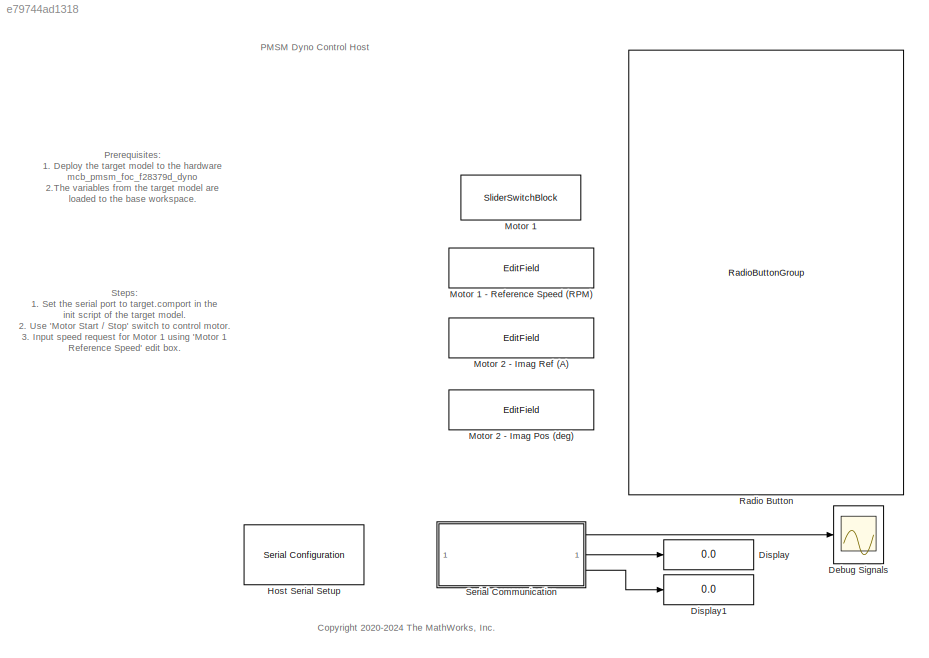
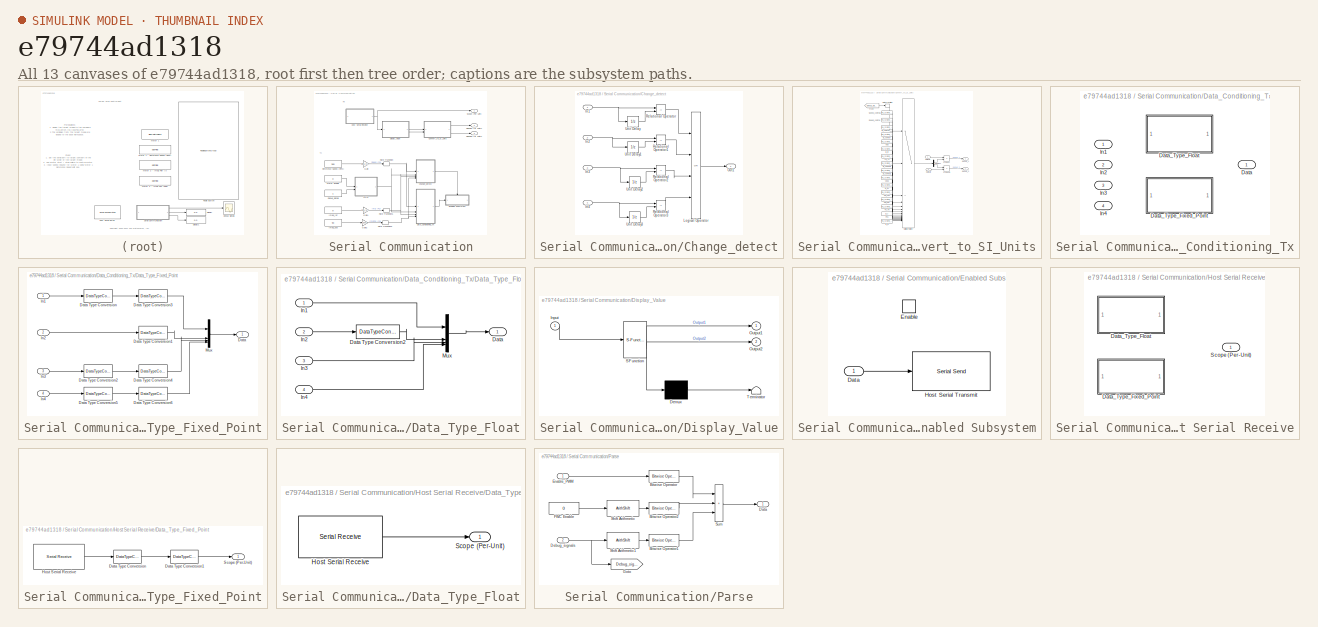
[diagram: thumbnail index - all 13 canvases of the model, root first then tree order]
MODEL slx_e79744ad1318
KIND model
CONFIG AbsTol = auto
CONFIG EnableMultiTasking = on
CONFIG FixedStep = auto
CONFIG MaxStep = auto
CONFIG MinStep = auto
CONFIG RelTol = 1e-3
CONFIG SampleTimeConstraint = Unconstrained
CONFIG SolverName = FixedStepDiscrete
CONFIG StartTime = 0.0
CONFIG StopTime = inf
BLOCK [Scope] Debug Signals
  Floating = off
  NumInputPorts = 1
  ScopeSpecificationString = Simulink.scopes.TimeScopeBlockCfg('CurrentConfiguration', extmgr.ConfigurationSet(extmgr.Configuration('Core','General UI',true),extmgr.Configuration('Core','Source UI',true),extmgr.Configuration('Sources','WiredSimulink',true,'DataLoggingVariableName','Results_HW','DataLoggingSaveFormat','StructureWithTime','DataLogging',true),extmgr.Configuration('Visuals','Time Domain',true,'InputProcessing','F...<+1792ch>
BLOCK [Display] Display
  Decimation = 1
BLOCK [Display] Display1
  Decimation = 1
BLOCK [Reference] Host Serial Setup  REF=instrumentseriallib/Serial Configuration
  LibrarySourceBlock = mcblib/Protection and Diagnostics/Host Serial Setup
  Priority = -99
  SourceBlock = instrumentseriallib/Serial Configuration
  SourceType = system.SerialConfiguration
BLOCK [SliderSwitchBlock] Motor 1
  LabelPosition = Hide
BLOCK [EditField] Motor 1 - Reference Speed (RPM)
  Alignment = Center
  LabelPosition = Hide
  ShowInitialText = on
BLOCK [EditField] Motor 2 - Imag Pos (deg)
  Alignment = Center
  LabelPosition = Hide
  ShowInitialText = on
BLOCK [EditField] Motor 2 - Imag Ref (A)
  Alignment = Center
  LabelPosition = Hide
  ShowInitialText = on
BLOCK [RadioButtonGroup] Radio Button
  ButtonGroupName = Debug signals
  LabelPosition = Hide
  SelectedLabel = Mtr1: Speed ref & Speed feedback
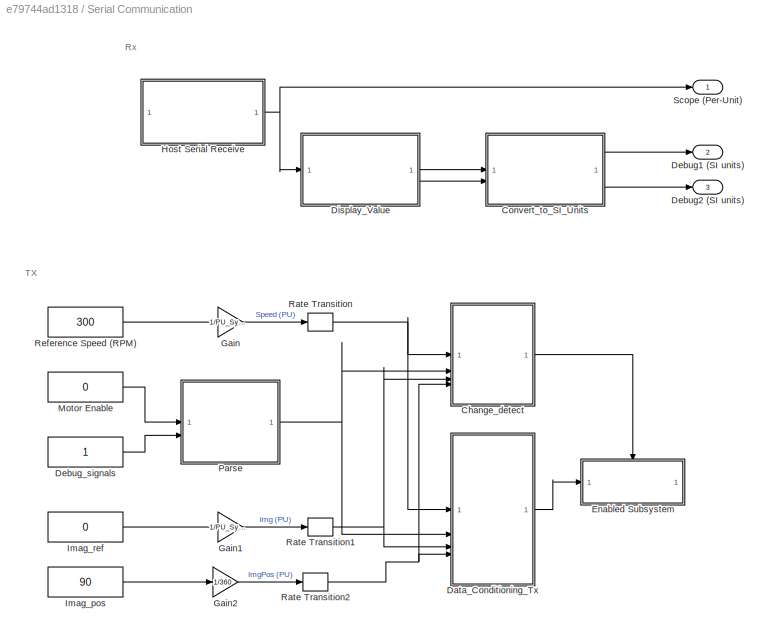
BLOCK [SubSystem] Serial Communication
BLOCK [SubSystem] Serial Communication/Change_detect
BLOCK [Inport] Serial Communication/Change_detect/In1
BLOCK [Inport] Serial Communication/Change_detect/In2
  Port = 2
BLOCK [Inport] Serial Communication/Change_detect/In3
  Port = 3
BLOCK [Inport] Serial Communication/Change_detect/In4
  Port = 4
BLOCK [Logic] Serial Communication/Change_detect/Logical Operator
  AllPortsSameDT = off
  Inputs = 4
  Operator = OR
  OutDataTypeStr = boolean
BLOCK [Outport] Serial Communication/Change_detect/Out1
  VectorParamsAs1DForOutWhenUnconnected = off
BLOCK [RelationalOperator] Serial Communication/Change_detect/Relational Operator
  InputSameDT = off
  Operator = ~=
  OutDataTypeStr = boolean
BLOCK [RelationalOperator] Serial Communication/Change_detect/Relational Operator1
  InputSameDT = off
  Operator = ~=
  OutDataTypeStr = boolean
BLOCK [RelationalOperator] Serial Communication/Change_detect/Relational Operator2
  InputSameDT = off
  Operator = ~=
  OutDataTypeStr = boolean
BLOCK [RelationalOperator] Serial Communication/Change_detect/Relational Operator3
  InputSameDT = off
  Operator = ~=
  OutDataTypeStr = boolean
BLOCK [UnitDelay] Serial Communication/Change_detect/Unit Delay
  HasFrameUpgradeWarning = on
  InitialCondition = 0.5
  SampleTime = -1
BLOCK [UnitDelay] Serial Communication/Change_detect/Unit Delay1
  HasFrameUpgradeWarning = on
  SampleTime = -1
BLOCK [UnitDelay] Serial Communication/Change_detect/Unit Delay2
  HasFrameUpgradeWarning = on
  InitialCondition = 0.5
  SampleTime = -1
BLOCK [UnitDelay] Serial Communication/Change_detect/Unit Delay3
  HasFrameUpgradeWarning = on
  InitialCondition = 0.5
  SampleTime = -1
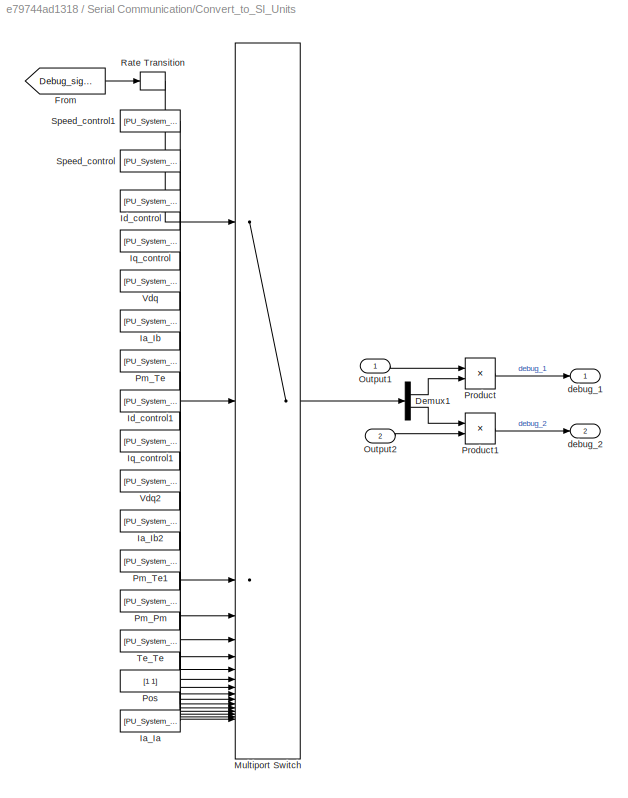
BLOCK [SubSystem] Serial Communication/Convert_to_SI_Units
BLOCK [Demux] Serial Communication/Convert_to_SI_Units/Demux1
  Outputs = 2
BLOCK [From] Serial Communication/Convert_to_SI_Units/From
  GotoTag = Debug_signals
  TagVisibility = global
BLOCK [Constant] Serial Communication/Convert_to_SI_Units/Ia_Ia
  OutDataTypeStr = single
  SampleTime = -1
  Value = [PU_System_motor1.I_base PU_System_motor2.I_base]
BLOCK [Constant] Serial Communication/Convert_to_SI_Units/Ia_Ib
  OutDataTypeStr = single
  SampleTime = -1
  Value = [PU_System_motor1.I_base PU_System_motor1.I_base]
BLOCK [Constant] Serial Communication/Convert_to_SI_Units/Ia_Ib2
  OutDataTypeStr = single
  SampleTime = -1
  Value = [PU_System_motor2.I_base PU_System_motor2.I_base]
BLOCK [Constant] Serial Communication/Convert_to_SI_Units/Id_control
  OutDataTypeStr = single
  SampleTime = -1
  Value = [PU_System_motor1.I_base PU_System_motor1.I_base]
BLOCK [Constant] Serial Communication/Convert_to_SI_Units/Id_control1
  OutDataTypeStr = single
  SampleTime = -1
  Value = [PU_System_motor2.I_base PU_System_motor2.I_base]
BLOCK [Constant] Serial Communication/Convert_to_SI_Units/Iq_control
  OutDataTypeStr = single
  SampleTime = -1
  Value = [PU_System_motor1.I_base PU_System_motor1.I_base]
BLOCK [Constant] Serial Communication/Convert_to_SI_Units/Iq_control1
  OutDataTypeStr = single
  SampleTime = -1
  Value = [PU_System_motor2.I_base PU_System_motor2.I_base]
BLOCK [MultiPortSwitch] Serial Communication/Convert_to_SI_Units/Multiport Switch
  DataPortOrder = Zero-based contiguous
  DiagnosticForDefault = Warning
  InputSameDT = off
  Inputs = 16
  OutDataTypeStr = single
  RndMeth = Simplest
  SaturateOnIntegerOverflow = off
  zeroidx = on
BLOCK [Inport] Serial Communication/Convert_to_SI_Units/Output1
BLOCK [Inport] Serial Communication/Convert_to_SI_Units/Output2
  Port = 2
BLOCK [Constant] Serial Communication/Convert_to_SI_Units/Pm_Pm
  OutDataTypeStr = single
  SampleTime = -1
  Value = [PU_System_motor1.P_base  PU_System_motor2.P_base]
BLOCK [Constant] Serial Communication/Convert_to_SI_Units/Pm_Te
  OutDataTypeStr = single
  SampleTime = -1
  Value = [PU_System_motor1.P_base  PU_System_motor1.T_base]
BLOCK [Constant] Serial Communication/Convert_to_SI_Units/Pm_Te1
  OutDataTypeStr = single
  SampleTime = -1
  Value = [PU_System_motor2.P_base  PU_System_motor2.T_base]
BLOCK [Constant] Serial Communication/Convert_to_SI_Units/Pos
  OutDataTypeStr = single
  SampleTime = -1
  Value = [1 1]
BLOCK [Product] Serial Communication/Convert_to_SI_Units/Product
BLOCK [Product] Serial Communication/Convert_to_SI_Units/Product1
BLOCK [RateTransition] Serial Communication/Convert_to_SI_Units/Rate Transition
  Deterministic = off
BLOCK [Constant] Serial Communication/Convert_to_SI_Units/Speed_control
  OutDataTypeStr = single
  SampleTime = -1
  Value = [PU_System_motor1.N_base PU_System_motor1.N_base]
BLOCK [Constant] Serial Communication/Convert_to_SI_Units/Speed_control1
  OutDataTypeStr = single
  SampleTime = -1
  Value = [PU_System_motor1.N_base PU_System_motor2.N_base]
BLOCK [Constant] Serial Communication/Convert_to_SI_Units/Te_Te
  OutDataTypeStr = single
  SampleTime = -1
  Value = [PU_System_motor1.T_base  PU_System_motor2.T_base]
BLOCK [Constant] Serial Communication/Convert_to_SI_Units/Vdq
  OutDataTypeStr = single
  SampleTime = -1
  Value = [PU_System_motor1.V_base PU_System_motor1.V_base]
BLOCK [Constant] Serial Communication/Convert_to_SI_Units/Vdq2
  OutDataTypeStr = single
  SampleTime = -1
  Value = [PU_System_motor2.V_base PU_System_motor2.V_base]
BLOCK [Outport] Serial Communication/Convert_to_SI_Units/debug_1
BLOCK [Outport] Serial Communication/Convert_to_SI_Units/debug_2
  Port = 2
BLOCK [SubSystem] Serial Communication/Data_Conditioning_Tx
  Variant = on
BLOCK [Outport] Serial Communication/Data_Conditioning_Tx/Data
BLOCK [SubSystem] Serial Communication/Data_Conditioning_Tx/Data_Type_Fixed_Point
  VariantControl = ~isequal(dataType, 'single')
BLOCK [Outport] Serial Communication/Data_Conditioning_Tx/Data_Type_Fixed_Point/Data
BLOCK [DataTypeConversion] Serial Communication/Data_Conditioning_Tx/Data_Type_Fixed_Point/Data Type Conversion
  OutDataTypeStr = fixdt(1,32,28)
  RndMeth = Simplest
  SaturateOnIntegerOverflow = off
BLOCK [DataTypeConversion] Serial Communication/Data_Conditioning_Tx/Data_Type_Fixed_Point/Data Type Conversion1
  OutDataTypeStr = uint32
  RndMeth = Simplest
  SaturateOnIntegerOverflow = off
BLOCK [DataTypeConversion] Serial Communication/Data_Conditioning_Tx/Data_Type_Fixed_Point/Data Type Conversion2
  OutDataTypeStr = fixdt(1,32,28)
  RndMeth = Simplest
  SaturateOnIntegerOverflow = off
BLOCK [DataTypeConversion] Serial Communication/Data_Conditioning_Tx/Data_Type_Fixed_Point/Data Type Conversion3
  ConvertRealWorld = Stored Integer (SI)
  OutDataTypeStr = uint32
  RndMeth = Simplest
  SaturateOnIntegerOverflow = off
BLOCK [DataTypeConversion] Serial Communication/Data_Conditioning_Tx/Data_Type_Fixed_Point/Data Type Conversion4
  ConvertRealWorld = Stored Integer (SI)
  OutDataTypeStr = uint32
  RndMeth = Simplest
  SaturateOnIntegerOverflow = off
BLOCK [DataTypeConversion] Serial Communication/Data_Conditioning_Tx/Data_Type_Fixed_Point/Data Type Conversion5
  OutDataTypeStr = fixdt(1,32,28)
  RndMeth = Simplest
  SaturateOnIntegerOverflow = off
BLOCK [DataTypeConversion] Serial Communication/Data_Conditioning_Tx/Data_Type_Fixed_Point/Data Type Conversion6
  ConvertRealWorld = Stored Integer (SI)
  OutDataTypeStr = uint32
  RndMeth = Simplest
  SaturateOnIntegerOverflow = off
BLOCK [Inport] Serial Communication/Data_Conditioning_Tx/Data_Type_Fixed_Point/In1
BLOCK [Inport] Serial Communication/Data_Conditioning_Tx/Data_Type_Fixed_Point/In2
  Port = 2
BLOCK [Inport] Serial Communication/Data_Conditioning_Tx/Data_Type_Fixed_Point/In3
  Port = 3
BLOCK [Inport] Serial Communication/Data_Conditioning_Tx/Data_Type_Fixed_Point/In4
  Port = 4
BLOCK [Mux] Serial Communication/Data_Conditioning_Tx/Data_Type_Fixed_Point/Mux
  DisplayOption = bar
BLOCK [SubSystem] Serial Communication/Data_Conditioning_Tx/Data_Type_Float
  VariantControl = isequal(dataType, 'single')
BLOCK [Outport] Serial Communication/Data_Conditioning_Tx/Data_Type_Float/Data
BLOCK [DataTypeConversion] Serial Communication/Data_Conditioning_Tx/Data_Type_Float/Data Type Conversion2
  OutDataTypeStr = single
  RndMeth = Simplest
  SaturateOnIntegerOverflow = off
BLOCK [Inport] Serial Communication/Data_Conditioning_Tx/Data_Type_Float/In1
BLOCK [Inport] Serial Communication/Data_Conditioning_Tx/Data_Type_Float/In2
  Port = 2
BLOCK [Inport] Serial Communication/Data_Conditioning_Tx/Data_Type_Float/In3
  Port = 3
BLOCK [Inport] Serial Communication/Data_Conditioning_Tx/Data_Type_Float/In4
  Port = 4
BLOCK [Mux] Serial Communication/Data_Conditioning_Tx/Data_Type_Float/Mux
  DisplayOption = bar
BLOCK [Inport] Serial Communication/Data_Conditioning_Tx/In1
BLOCK [Inport] Serial Communication/Data_Conditioning_Tx/In2
  Port = 2
BLOCK [Inport] Serial Communication/Data_Conditioning_Tx/In3
  Port = 3
BLOCK [Inport] Serial Communication/Data_Conditioning_Tx/In4
  Port = 4
BLOCK [Outport] Serial Communication/Debug1 (SI units)
  Port = 2
BLOCK [Outport] Serial Communication/Debug2 (SI units)
  Port = 3
BLOCK [Constant] Serial Communication/Debug_signals
  OutDataTypeStr = uint16
  SampleTime = 0.03
BLOCK [SubSystem] Serial Communication/Display_Value
  ErrorFcn = Stateflow.Translate.translate
  PermitHierarchicalResolution = ExplicitOnly
  SFBlockType = MATLAB Function
  TreatAsAtomicUnit = on
BLOCK [Demux] Serial Communication/Display_Value/ Demux 
  Outputs = 1
BLOCK [S-Function] Serial Communication/Display_Value/ SFunction 
  EnableBusSupport = on
  FunctionName = sf_sfun
  PortCounts = [1 3]
  SFcnIsStateOwnerBlock = off
  SFunctionDeploymentMode = off
  Tag = Stateflow S-Function 3
BLOCK [Terminator] Serial Communication/Display_Value/ Terminator 
BLOCK [Inport] Serial Communication/Display_Value/Input
BLOCK [Outport] Serial Communication/Display_Value/Output1
BLOCK [Outport] Serial Communication/Display_Value/Output2
  Port = 2
BLOCK [SubSystem] Serial Communication/Enabled Subsystem
  TreatAsAtomicUnit = on
BLOCK [Inport] Serial Communication/Enabled Subsystem/Data
BLOCK [EnablePort] Serial Communication/Enabled Subsystem/Enable
BLOCK [Reference] Serial Communication/Enabled Subsystem/Host Serial Transmit  REF=instrumentseriallib/Serial Send
  LibrarySourceBlock = mcblib/Protection and Diagnostics/Host Serial Transmit
  SourceBlock = instrumentseriallib/Serial Send
  SourceType = system.SerialSend
BLOCK [Gain] Serial Communication/Gain
  Gain = 1/PU_System_motor1.N_base
  OutDataTypeStr = Inherit: Same as input
  RndMeth = Simplest
BLOCK [Gain] Serial Communication/Gain1
  Gain = 1/PU_System_motor2.I_base
  OutDataTypeStr = Inherit: Same as input
  RndMeth = Simplest
BLOCK [Gain] Serial Communication/Gain2
  Gain = 1/360
  OutDataTypeStr = Inherit: Same as input
  RndMeth = Simplest
BLOCK [SubSystem] Serial Communication/Host Serial Receive
  Variant = on
BLOCK [SubSystem] Serial Communication/Host Serial Receive/Data_Type_Fixed_Point
  VariantControl = ~isequal(dataType, 'single')
BLOCK [DataTypeConversion] Serial Communication/Host Serial Receive/Data_Type_Fixed_Point/Data Type Conversion
  ConvertRealWorld = Stored Integer (SI)
  OutDataTypeStr = fixdt(1,32,28)
  RndMeth = Simplest
  SaturateOnIntegerOverflow = off
BLOCK [DataTypeConversion] Serial Communication/Host Serial Receive/Data_Type_Fixed_Point/Data Type Conversion1
  OutDataTypeStr = single
  RndMeth = Simplest
  SaturateOnIntegerOverflow = off
BLOCK [Reference] Serial Communication/Host Serial Receive/Data_Type_Fixed_Point/Host Serial Receive  REF=instrumentseriallib/Serial Receive
  LibrarySourceBlock = mcblib/Protection and Diagnostics/Host Serial Receive
  SourceBlock = instrumentseriallib/Serial Receive
  SourceType = system.SerialReceive
BLOCK [Outport] Serial Communication/Host Serial Receive/Data_Type_Fixed_Point/Scope (Per-Unit)
BLOCK [SubSystem] Serial Communication/Host Serial Receive/Data_Type_Float
  VariantControl = isequal(dataType, 'single')
BLOCK [Reference] Serial Communication/Host Serial Receive/Data_Type_Float/Host Serial Receive  REF=instrumentseriallib/Serial Receive
  LibrarySourceBlock = mcblib/Protection and Diagnostics/Host Serial Receive
  SourceBlock = instrumentseriallib/Serial Receive
  SourceType = system.SerialReceive
BLOCK [Outport] Serial Communication/Host Serial Receive/Data_Type_Float/Scope (Per-Unit)
BLOCK [Outport] Serial Communication/Host Serial Receive/Scope (Per-Unit)
BLOCK [Constant] Serial Communication/Imag_pos
  OutDataTypeStr = single
  SampleTime = 0.03
  Value = 90
  VectorParams1D = off
BLOCK [Constant] Serial Communication/Imag_ref
  OutDataTypeStr = single
  SampleTime = 0.03
  Value = 0
  VectorParams1D = off
BLOCK [Constant] Serial Communication/Motor Enable
  OutDataTypeStr = uint16
  SampleTime = 0.03
  Value = 0
  VectorParams1D = off
BLOCK [SubSystem] Serial Communication/Parse
BLOCK [Reference] Serial Communication/Parse/Bitwise Operator  REF=simulink/Logic and Bit
Operations/Bitwise
Operator
  SourceBlock = simulink/Logic and Bit\nOperations/Bitwise\nOperator
  SourceType = Bitwise Operator
BLOCK [Reference] Serial Communication/Parse/Bitwise Operator1  REF=simulink/Logic and Bit
Operations/Bitwise
Operator
  SourceBlock = simulink/Logic and Bit\nOperations/Bitwise\nOperator
  SourceType = Bitwise Operator
BLOCK [Reference] Serial Communication/Parse/Bitwise Operator2  REF=simulink/Logic and Bit
Operations/Bitwise
Operator
  SourceBlock = simulink/Logic and Bit\nOperations/Bitwise\nOperator
  SourceType = Bitwise Operator
BLOCK [Outport] Serial Communication/Parse/Data
BLOCK [Inport] Serial Communication/Parse/Debug_signals
  Port = 2
BLOCK [Inport] Serial Communication/Parse/Enable_PWM
BLOCK [Constant] Serial Communication/Parse/FWC Enable
  OutDataTypeStr = uint16
  SampleTime = 0.03
  Value = 0
  VectorParams1D = off
BLOCK [Goto] Serial Communication/Parse/Goto
  GotoTag = Debug_signals
  TagVisibility = global
BLOCK [ArithShift] Serial Communication/Parse/Shift Arithmetic
  BitShiftNumber = -1
  InputPortMap = u0
BLOCK [ArithShift] Serial Communication/Parse/Shift Arithmetic1
  BitShiftNumber = -4
  InputPortMap = u0
BLOCK [Sum] Serial Communication/Parse/Sum
  IconShape = rectangular
  Inputs = |+++
BLOCK [RateTransition] Serial Communication/Rate Transition
  OutPortSampleTime = 0.03
BLOCK [RateTransition] Serial Communication/Rate Transition1
  OutPortSampleTime = 0.03
BLOCK [RateTransition] Serial Communication/Rate Transition2
  OutPortSampleTime = 0.03
BLOCK [Constant] Serial Communication/Reference Speed (RPM)
  OutDataTypeStr = single
  SampleTime = 0.03
  Value = 300
  VectorParams1D = off
BLOCK [Outport] Serial Communication/Scope (Per-Unit)
ANNOTATION (root): PMSM Dyno Control Host
ANNOTATION (root): <copyright redacted>
ANNOTATION (root): Prerequisites: 1. Deploy the target model to the hardware mcb_pmsm_foc_f28379d_dyno 2.The variables from the target model are loaded to the base workspace.
ANNOTATION (root): Steps: 1. Set the serial port to target.comport in the init script of the target model. 2. Use 'Motor Start / Stop' switch to control motor. 3. Input speed request for Motor 1 using 'Motor 1 Reference Speed' edit box. 4. Input Iq ref for Motor 2 using 'Motor 2 - Imag Ref' edit box. 5. Observe the debug signals in scope.
ANNOTATION Serial Communication: Rx
ANNOTATION Serial Communication: TX
NET Serial Communication/Change_detect/In1:1 -> Serial Communication/Change_detect/Relational Operator:1, Serial Communication/Change_detect/Unit Delay:1
NET Serial Communication/Change_detect/In2:1 -> Serial Communication/Change_detect/Relational Operator1:1, Serial Communication/Change_detect/Unit Delay1:1
NET Serial Communication/Change_detect/In3:1 -> Serial Communication/Change_detect/Relational Operator2:1, Serial Communication/Change_detect/Unit Delay2:1
NET Serial Communication/Change_detect/In4:1 -> Serial Communication/Change_detect/Relational Operator3:1, Serial Communication/Change_detect/Unit Delay3:1
LINE Serial Communication/Change_detect/Logical Operator:1 -> Serial Communication/Change_detect/Out1:1
LINE Serial Communication/Change_detect/Relational Operator1:1 -> Serial Communication/Change_detect/Logical Operator:2
LINE Serial Communication/Change_detect/Relational Operator2:1 -> Serial Communication/Change_detect/Logical Operator:3
LINE Serial Communication/Change_detect/Relational Operator3:1 -> Serial Communication/Change_detect/Logical Operator:4
LINE Serial Communication/Change_detect/Relational Operator:1 -> Serial Communication/Change_detect/Logical Operator:1
LINE Serial Communication/Change_detect/Unit Delay1:1 -> Serial Communication/Change_detect/Relational Operator1:2
LINE Serial Communication/Change_detect/Unit Delay2:1 -> Serial Communication/Change_detect/Relational Operator2:2
LINE Serial Communication/Change_detect/Unit Delay3:1 -> Serial Communication/Change_detect/Relational Operator3:2
LINE Serial Communication/Change_detect/Unit Delay:1 -> Serial Communication/Change_detect/Relational Operator:2
LINE Serial Communication/Change_detect:1 -> Serial Communication/Enabled Subsystem:enable
LINE Serial Communication/Convert_to_SI_Units/Demux1:1 -> Serial Communication/Convert_to_SI_Units/Product:2
LINE Serial Communication/Convert_to_SI_Units/Demux1:2 -> Serial Communication/Convert_to_SI_Units/Product1:1
LINE Serial Communication/Convert_to_SI_Units/From:1 -> Serial Communication/Convert_to_SI_Units/Rate Transition:1
LINE Serial Communication/Convert_to_SI_Units/Ia_Ia:1 -> Serial Communication/Convert_to_SI_Units/Multiport Switch:17
LINE Serial Communication/Convert_to_SI_Units/Ia_Ib2:1 -> Serial Communication/Convert_to_SI_Units/Multiport Switch:12
LINE Serial Communication/Convert_to_SI_Units/Ia_Ib:1 -> Serial Communication/Convert_to_SI_Units/Multiport Switch:7
LINE Serial Communication/Convert_to_SI_Units/Id_control1:1 -> Serial Communication/Convert_to_SI_Units/Multiport Switch:9
LINE Serial Communication/Convert_to_SI_Units/Id_control:1 -> Serial Communication/Convert_to_SI_Units/Multiport Switch:4
LINE Serial Communication/Convert_to_SI_Units/Iq_control1:1 -> Serial Communication/Convert_to_SI_Units/Multiport Switch:10
LINE Serial Communication/Convert_to_SI_Units/Iq_control:1 -> Serial Communication/Convert_to_SI_Units/Multiport Switch:5
LINE Serial Communication/Convert_to_SI_Units/Multiport Switch:1 -> Serial Communication/Convert_to_SI_Units/Demux1:1
LINE Serial Communication/Convert_to_SI_Units/Output1:1 -> Serial Communication/Convert_to_SI_Units/Product:1
LINE Serial Communication/Convert_to_SI_Units/Output2:1 -> Serial Communication/Convert_to_SI_Units/Product1:2
LINE Serial Communication/Convert_to_SI_Units/Pm_Pm:1 -> Serial Communication/Convert_to_SI_Units/Multiport Switch:14
LINE Serial Communication/Convert_to_SI_Units/Pm_Te1:1 -> Serial Communication/Convert_to_SI_Units/Multiport Switch:13
LINE Serial Communication/Convert_to_SI_Units/Pm_Te:1 -> Serial Communication/Convert_to_SI_Units/Multiport Switch:8
LINE Serial Communication/Convert_to_SI_Units/Pos:1 -> Serial Communication/Convert_to_SI_Units/Multiport Switch:16
LINE Serial Communication/Convert_to_SI_Units/Product1:1 -> Serial Communication/Convert_to_SI_Units/debug_2:1
LINE Serial Communication/Convert_to_SI_Units/Product:1 -> Serial Communication/Convert_to_SI_Units/debug_1:1
LINE Serial Communication/Convert_to_SI_Units/Rate Transition:1 -> Serial Communication/Convert_to_SI_Units/Multiport Switch:1
LINE Serial Communication/Convert_to_SI_Units/Speed_control1:1 -> Serial Communication/Convert_to_SI_Units/Multiport Switch:2
LINE Serial Communication/Convert_to_SI_Units/Speed_control:1 -> Serial Communication/Convert_to_SI_Units/Multiport Switch:3
LINE Serial Communication/Convert_to_SI_Units/Te_Te:1 -> Serial Communication/Convert_to_SI_Units/Multiport Switch:15
LINE Serial Communication/Convert_to_SI_Units/Vdq2:1 -> Serial Communication/Convert_to_SI_Units/Multiport Switch:11
LINE Serial Communication/Convert_to_SI_Units/Vdq:1 -> Serial Communication/Convert_to_SI_Units/Multiport Switch:6
LINE Serial Communication/Convert_to_SI_Units:1 -> Serial Communication/Debug1 (SI units):1
LINE Serial Communication/Convert_to_SI_Units:2 -> Serial Communication/Debug2 (SI units):1
LINE Serial Communication/Data_Conditioning_Tx/Data_Type_Fixed_Point/Data Type Conversion1:1 -> Serial Communication/Data_Conditioning_Tx/Data_Type_Fixed_Point/Mux:2
LINE Serial Communication/Data_Conditioning_Tx/Data_Type_Fixed_Point/Data Type Conversion2:1 -> Serial Communication/Data_Conditioning_Tx/Data_Type_Fixed_Point/Data Type Conversion4:1
LINE Serial Communication/Data_Conditioning_Tx/Data_Type_Fixed_Point/Data Type Conversion3:1 -> Serial Communication/Data_Conditioning_Tx/Data_Type_Fixed_Point/Mux:1
LINE Serial Communication/Data_Conditioning_Tx/Data_Type_Fixed_Point/Data Type Conversion4:1 -> Serial Communication/Data_Conditioning_Tx/Data_Type_Fixed_Point/Mux:3
LINE Serial Communication/Data_Conditioning_Tx/Data_Type_Fixed_Point/Data Type Conversion5:1 -> Serial Communication/Data_Conditioning_Tx/Data_Type_Fixed_Point/Data Type Conversion6:1
LINE Serial Communication/Data_Conditioning_Tx/Data_Type_Fixed_Point/Data Type Conversion6:1 -> Serial Communication/Data_Conditioning_Tx/Data_Type_Fixed_Point/Mux:4
LINE Serial Communication/Data_Conditioning_Tx/Data_Type_Fixed_Point/Data Type Conversion:1 -> Serial Communication/Data_Conditioning_Tx/Data_Type_Fixed_Point/Data Type Conversion3:1
LINE Serial Communication/Data_Conditioning_Tx/Data_Type_Fixed_Point/In1:1 -> Serial Communication/Data_Conditioning_Tx/Data_Type_Fixed_Point/Data Type Conversion:1
LINE Serial Communication/Data_Conditioning_Tx/Data_Type_Fixed_Point/In2:1 -> Serial Communication/Data_Conditioning_Tx/Data_Type_Fixed_Point/Data Type Conversion1:1
LINE Serial Communication/Data_Conditioning_Tx/Data_Type_Fixed_Point/In3:1 -> Serial Communication/Data_Conditioning_Tx/Data_Type_Fixed_Point/Data Type Conversion2:1
LINE Serial Communication/Data_Conditioning_Tx/Data_Type_Fixed_Point/In4:1 -> Serial Communication/Data_Conditioning_Tx/Data_Type_Fixed_Point/Data Type Conversion5:1
LINE Serial Communication/Data_Conditioning_Tx/Data_Type_Fixed_Point/Mux:1 -> Serial Communication/Data_Conditioning_Tx/Data_Type_Fixed_Point/Data:1
LINE Serial Communication/Data_Conditioning_Tx/Data_Type_Float/Data Type Conversion2:1 -> Serial Communication/Data_Conditioning_Tx/Data_Type_Float/Mux:2
LINE Serial Communication/Data_Conditioning_Tx/Data_Type_Float/In1:1 -> Serial Communication/Data_Conditioning_Tx/Data_Type_Float/Mux:1
LINE Serial Communication/Data_Conditioning_Tx/Data_Type_Float/In2:1 -> Serial Communication/Data_Conditioning_Tx/Data_Type_Float/Data Type Conversion2:1
LINE Serial Communication/Data_Conditioning_Tx/Data_Type_Float/In3:1 -> Serial Communication/Data_Conditioning_Tx/Data_Type_Float/Mux:3
LINE Serial Communication/Data_Conditioning_Tx/Data_Type_Float/In4:1 -> Serial Communication/Data_Conditioning_Tx/Data_Type_Float/Mux:4
LINE Serial Communication/Data_Conditioning_Tx/Data_Type_Float/Mux:1 -> Serial Communication/Data_Conditioning_Tx/Data_Type_Float/Data:1
LINE Serial Communication/Data_Conditioning_Tx:1 -> Serial Communication/Enabled Subsystem:1
LINE Serial Communication/Debug_signals:1 -> Serial Communication/Parse:2
LINE Serial Communication/Display_Value:1 -> Serial Communication/Convert_to_SI_Units:1
LINE Serial Communication/Display_Value:2 -> Serial Communication/Convert_to_SI_Units:2
LINE Serial Communication/Enabled Subsystem/Data:1 -> Serial Communication/Enabled Subsystem/Host Serial Transmit:1
LINE Serial Communication/Gain1:1 -> Serial Communication/Rate Transition1:1
LINE Serial Communication/Gain2:1 -> Serial Communication/Rate Transition2:1
LINE Serial Communication/Gain:1 -> Serial Communication/Rate Transition:1
LINE Serial Communication/Host Serial Receive/Data_Type_Fixed_Point/Data Type Conversion1:1 -> Serial Communication/Host Serial Receive/Data_Type_Fixed_Point/Scope (Per-Unit):1
LINE Serial Communication/Host Serial Receive/Data_Type_Fixed_Point/Data Type Conversion:1 -> Serial Communication/Host Serial Receive/Data_Type_Fixed_Point/Data Type Conversion1:1
LINE Serial Communication/Host Serial Receive/Data_Type_Fixed_Point/Host Serial Receive:1 -> Serial Communication/Host Serial Receive/Data_Type_Fixed_Point/Data Type Conversion:1
LINE Serial Communication/Host Serial Receive/Data_Type_Float/Host Serial Receive:1 -> Serial Communication/Host Serial Receive/Data_Type_Float/Scope (Per-Unit):1
NET Serial Communication/Host Serial Receive:1 -> Serial Communication/Display_Value:1, Serial Communication/Scope (Per-Unit):1
LINE Serial Communication/Imag_pos:1 -> Serial Communication/Gain2:1
LINE Serial Communication/Imag_ref:1 -> Serial Communication/Gain1:1
LINE Serial Communication/Motor Enable:1 -> Serial Communication/Parse:1
LINE Serial Communication/Parse/Bitwise Operator1:1 -> Serial Communication/Parse/Sum:3
LINE Serial Communication/Parse/Bitwise Operator2:1 -> Serial Communication/Parse/Sum:2
LINE Serial Communication/Parse/Bitwise Operator:1 -> Serial Communication/Parse/Sum:1
NET Serial Communication/Parse/Debug_signals:1 -> Serial Communication/Parse/Goto:1, Serial Communication/Parse/Shift Arithmetic1:1
LINE Serial Communication/Parse/Enable_PWM:1 -> Serial Communication/Parse/Bitwise Operator:1
LINE Serial Communication/Parse/FWC Enable:1 -> Serial Communication/Parse/Shift Arithmetic:1
LINE Serial Communication/Parse/Shift Arithmetic1:1 -> Serial Communication/Parse/Bitwise Operator1:1
LINE Serial Communication/Parse/Shift Arithmetic:1 -> Serial Communication/Parse/Bitwise Operator2:1
LINE Serial Communication/Parse/Sum:1 -> Serial Communication/Parse/Data:1
NET Serial Communication/Parse:1 -> Serial Communication/Change_detect:2, Serial Communication/Data_Conditioning_Tx:2
NET Serial Communication/Rate Transition1:1 -> Serial Communication/Change_detect:3, Serial Communication/Data_Conditioning_Tx:3
NET Serial Communication/Rate Transition2:1 -> Serial Communication/Change_detect:4, Serial Communication/Data_Conditioning_Tx:4
NET Serial Communication/Rate Transition:1 -> Serial Communication/Change_detect:1, Serial Communication/Data_Conditioning_Tx:1
LINE Serial Communication/Reference Speed (RPM):1 -> Serial Communication/Gain:1
LINE Serial Communication:1 -> Debug Signals:1
LINE Serial Communication:2 -> Display:1
LINE Serial Communication:3 -> Display1:1
note: NET lines group one-source signal fan-out (src -> all destinations, sorted); 1:1 wires keep LINE
CHART Serial Communication/Display_Value states=1 transitions=1
  STATE_LABEL 'eML_blk_kernel()'
  STATE_LABEL 'SCRIPT:\nfunction [Output1, Output2] = unBuf (Input)\n%% ************************************************************************\n% Unbuffer function\n% Outputs first received serial data from buffer for both signals\n\n% <copyright redacted>\n\nselSignal= Input(:, 1);\nOutput1 = selSignal(1,1);\nselSignal = Input(:, 2);\nOutput2 = selSignal(1,1);\nend'
CHART  states=0 transitions=0
